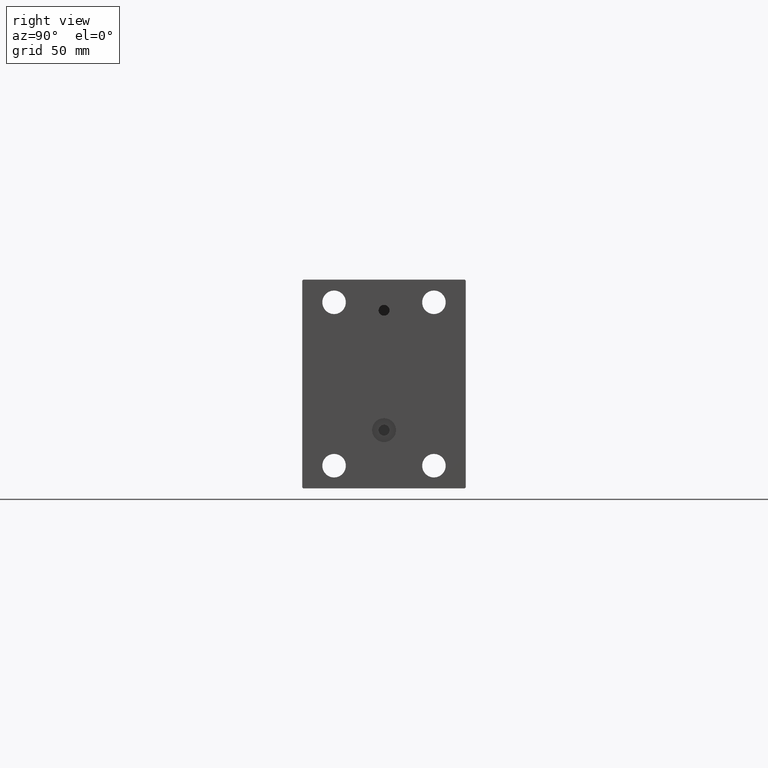
[diagram: clean part render]
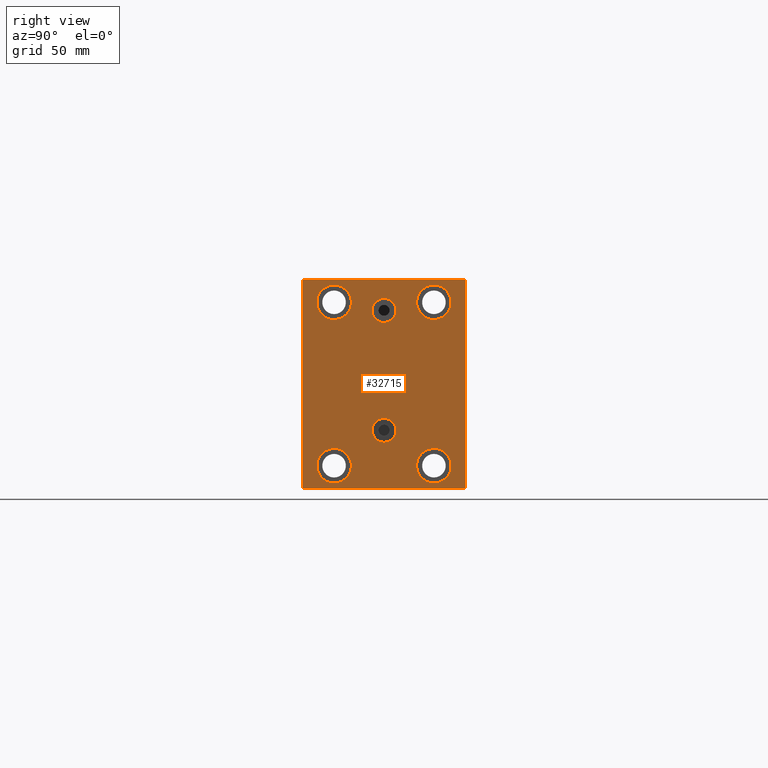
[diagram: same view with one face highlighted and labeled with its STEP entity id]
A machine part, right view. The second image highlights one B-rep face of the part: STEP entity #32715.
In plain terms, the highlighted planar face has unit normal (1, 0, 0).
Its self-contained STEP definition (entity closure, byte-faithful):
#542 = CIRCLE ( 'NONE', #17901, 9.500000000000001776 ) ;
#580 = DIRECTION ( 'NONE',  ( 0.000000000000000000, 0.000000000000000000, 1.000000000000000000 ) ) ;
#746 = LINE ( 'NONE', #44636, #17536 ) ;
#1048 = CIRCLE ( 'NONE', #27455, 6.580000000000002736 ) ;
#1370 = CARTESIAN_POINT ( 'NONE',  ( 278.0000000000000000, 45.00000000000000000, 57.50000000000000711 ) ) ;
#1559 = EDGE_LOOP ( 'NONE', ( #8905, #34251 ) ) ;
#1740 = EDGE_CURVE ( 'NONE', #34010, #37611, #39596, .T. ) ;
#1763 = CARTESIAN_POINT ( 'NONE',  ( 278.0000000000000000, -27.50000000000000000, -35.49999999999998579 ) ) ;
#2450 = ORIENTED_EDGE ( 'NONE', *, *, #26163, .T. ) ;
#2710 = CARTESIAN_POINT ( 'NONE',  ( 278.0000000000000000, 3.928666931664708475E-15, -18.91999999999999105 ) ) ;
#2758 = VERTEX_POINT ( 'NONE', #15259 ) ;
#3022 = ORIENTED_EDGE ( 'NONE', *, *, #37446, .F. ) ;
#3127 = AXIS2_PLACEMENT_3D ( 'NONE', #45572, #16820, #38724 ) ;
#3418 = VERTEX_POINT ( 'NONE', #11371 ) ;
#3640 = ORIENTED_EDGE ( 'NONE', *, *, #35917, .T. ) ;
#4467 = DIRECTION ( 'NONE',  ( -1.000000000000000000, -0.000000000000000000, -0.000000000000000000 ) ) ;
#4516 = LINE ( 'NONE', #33326, #22426 ) ;
#4670 = DIRECTION ( 'NONE',  ( 0.000000000000000000, 0.000000000000000000, 1.000000000000000000 ) ) ;
#4708 = DIRECTION ( 'NONE',  ( 0.000000000000000000, 0.000000000000000000, 1.000000000000000000 ) ) ;
#5155 = CIRCLE ( 'NONE', #23265, 6.580000000000002736 ) ;
#5231 = DIRECTION ( 'NONE',  ( -1.000000000000000000, -0.000000000000000000, -0.000000000000000000 ) ) ;
#5397 = CARTESIAN_POINT ( 'NONE',  ( 278.0000000000000000, -50.99999999999877076, -51.00000000000159162 ) ) ;
#5438 = VERTEX_POINT ( 'NONE', #44143 ) ;
#5465 = DIRECTION ( 'NONE',  ( 0.000000000000000000, 0.000000000000000000, 1.000000000000000000 ) ) ;
#5944 = VERTEX_POINT ( 'NONE', #34551 ) ;
#6117 = CARTESIAN_POINT ( 'NONE',  ( 278.0000000000000000, 45.00000000000001421, -57.50000000000000711 ) ) ;
#6212 = EDGE_CURVE ( 'NONE', #33758, #23087, #746, .T. ) ;
#6391 = CARTESIAN_POINT ( 'NONE',  ( 278.0000000000000000, 27.50000000000001066, 35.50000000000000711 ) ) ;
#6501 = LINE ( 'NONE', #20899, #8083 ) ;
#6544 = CARTESIAN_POINT ( 'NONE',  ( 278.0000000000000000, 27.49999999999998934, -44.99999999999998579 ) ) ;
#6600 = EDGE_CURVE ( 'NONE', #39061, #25896, #18318, .T. ) ;
#6933 = DIRECTION ( 'NONE',  ( 0.000000000000000000, 0.000000000000000000, -1.000000000000000000 ) ) ;
#7277 = EDGE_CURVE ( 'NONE', #15732, #33406, #8521, .T. ) ;
#7315 = DIRECTION ( 'NONE',  ( -1.000000000000000000, -0.000000000000000000, -0.000000000000000000 ) ) ;
#8083 = VECTOR ( 'NONE', #31079, 1000.000000000000000 ) ;
#8387 = DIRECTION ( 'NONE',  ( 0.000000000000000000, 0.000000000000000000, 1.000000000000000000 ) ) ;
#8521 = CIRCLE ( 'NONE', #45459, 9.500000000000001776 ) ;
#8905 = ORIENTED_EDGE ( 'NONE', *, *, #28478, .F. ) ;
#9211 = CIRCLE ( 'NONE', #35583, 9.500000000000001776 ) ;
#9622 = CARTESIAN_POINT ( 'NONE',  ( 278.0000000000000000, 0.000000000000000000, 0.000000000000000000 ) ) ;
#9680 = LINE ( 'NONE', #28313, #39824 ) ;
#10083 = PLANE ( 'NONE',  #15969 ) ;
#10763 = AXIS2_PLACEMENT_3D ( 'NONE', #37027, #4467, #4708 ) ;
#10981 = CARTESIAN_POINT ( 'NONE',  ( 278.0000000000000000, 3.122849337825749828E-15, -25.49999999999999645 ) ) ;
#11371 = CARTESIAN_POINT ( 'NONE',  ( 278.0000000000000000, -5.306417150674643778E-15, 33.92000000000000881 ) ) ;
#11404 = VECTOR ( 'NONE', #6933, 1000.000000000000000 ) ;
#11560 = EDGE_LOOP ( 'NONE', ( #3022, #43820 ) ) ;
#12663 = EDGE_CURVE ( 'NONE', #15606, #19687, #43479, .T. ) ;
#13333 = CARTESIAN_POINT ( 'NONE',  ( 278.0000000000000000, 27.49999999999998934, -54.49999999999998579 ) ) ;
#13391 = EDGE_CURVE ( 'NONE', #25896, #39061, #32940, .T. ) ;
#13629 = FACE_BOUND ( 'NONE', #34813, .T. ) ;
#13854 = CIRCLE ( 'NONE', #22906, 6.580000000000002736 ) ;
#13863 = DIRECTION ( 'NONE',  ( 0.000000000000000000, 0.000000000000000000, -1.000000000000000000 ) ) ;
#13905 = EDGE_CURVE ( 'NONE', #33406, #15732, #542, .T. ) ;
#14065 = DIRECTION ( 'NONE',  ( 0.000000000000000000, 0.000000000000000000, -1.000000000000000000 ) ) ;
#14753 = CARTESIAN_POINT ( 'NONE',  ( 278.0000000000000000, -27.50000000000000000, -54.49999999999998579 ) ) ;
#15259 = CARTESIAN_POINT ( 'NONE',  ( 278.0000000000000000, -4.500599556835684736E-15, 47.08000000000001251 ) ) ;
#15606 = VERTEX_POINT ( 'NONE', #1763 ) ;
#15732 = VERTEX_POINT ( 'NONE', #43697 ) ;
#15969 = AXIS2_PLACEMENT_3D ( 'NONE', #9622, #46156, #13863 ) ;
#15998 = DIRECTION ( 'NONE',  ( -1.000000000000000000, -0.000000000000000000, -0.000000000000000000 ) ) ;
#16058 = EDGE_CURVE ( 'NONE', #2758, #3418, #5155, .T. ) ;
#16216 = VERTEX_POINT ( 'NONE', #45167 ) ;
#16540 = ORIENTED_EDGE ( 'NONE', *, *, #28771, .T. ) ;
#16622 = CARTESIAN_POINT ( 'NONE',  ( 278.0000000000000000, -27.49999999999998934, 45.00000000000000711 ) ) ;
#16790 = CARTESIAN_POINT ( 'NONE',  ( 278.0000000000000000, 45.00000000000001421, -56.99999999999997868 ) ) ;
#16820 = DIRECTION ( 'NONE',  ( 1.000000000000000000, 0.000000000000000000, 0.000000000000000000 ) ) ;
#17135 = AXIS2_PLACEMENT_3D ( 'NONE', #24340, #7315, #32332 ) ;
#17184 = DIRECTION ( 'NONE',  ( 0.000000000000000000, 0.000000000000000000, 1.000000000000000000 ) ) ;
#17319 = LINE ( 'NONE', #17778, #11404 ) ;
#17339 = EDGE_CURVE ( 'NONE', #37611, #16216, #9680, .T. ) ;
#17536 = VECTOR ( 'NONE', #40616, 1000.000000000000000 ) ;
#17778 = CARTESIAN_POINT ( 'NONE',  ( 278.0000000000000000, -45.00000000000000000, 57.49999999999999289 ) ) ;
#17901 = AXIS2_PLACEMENT_3D ( 'NONE', #27095, #15998, #38365 ) ;
#18011 = EDGE_CURVE ( 'NONE', #44744, #34010, #4516, .T. ) ;
#18201 = CIRCLE ( 'NONE', #3127, 6.580000000000002736 ) ;
#18304 = VECTOR ( 'NONE', #35119, 1000.000000000000000 ) ;
#18318 = CIRCLE ( 'NONE', #10763, 9.500000000000001776 ) ;
#18838 = DIRECTION ( 'NONE',  ( -0.000000000000000000, 0.7071067811865671127, -0.7071067811865279218 ) ) ;
#19202 = ORIENTED_EDGE ( 'NONE', *, *, #6600, .T. ) ;
#19687 = VERTEX_POINT ( 'NONE', #14753 ) ;
#19742 = VECTOR ( 'NONE', #18838, 1000.000000000000000 ) ;
#19769 = CARTESIAN_POINT ( 'NONE',  ( 278.0000000000000000, 45.00000000000000000, 57.00000000000000711 ) ) ;
#20095 = CARTESIAN_POINT ( 'NONE',  ( 278.0000000000000000, 27.49999999999998934, -35.49999999999998579 ) ) ;
#20361 = VERTEX_POINT ( 'NONE', #13333 ) ;
#20899 = CARTESIAN_POINT ( 'NONE',  ( 278.0000000000000000, -45.00000000000000000, -57.50000000000000711 ) ) ;
#22261 = EDGE_LOOP ( 'NONE', ( #44395, #39493 ) ) ;
#22426 = VECTOR ( 'NONE', #34718, 1000.000000000000000 ) ;
#22701 = CARTESIAN_POINT ( 'NONE',  ( 278.0000000000000000, 27.49999999999998934, -44.99999999999998579 ) ) ;
#22906 = AXIS2_PLACEMENT_3D ( 'NONE', #10981, #32704, #580 ) ;
#23087 = VERTEX_POINT ( 'NONE', #16790 ) ;
#23265 = AXIS2_PLACEMENT_3D ( 'NONE', #39289, #31325, #14065 ) ;
#23901 = VERTEX_POINT ( 'NONE', #38926 ) ;
#24340 = CARTESIAN_POINT ( 'NONE',  ( 278.0000000000000000, -27.50000000000000000, -44.99999999999998579 ) ) ;
#24494 = FACE_OUTER_BOUND ( 'NONE', #44972, .T. ) ;
#25171 = VERTEX_POINT ( 'NONE', #2710 ) ;
#25690 = ORIENTED_EDGE ( 'NONE', *, *, #6212, .T. ) ;
#25896 = VERTEX_POINT ( 'NONE', #41817 ) ;
#26161 = CARTESIAN_POINT ( 'NONE',  ( 278.0000000000000000, -27.50000000000000000, -44.99999999999998579 ) ) ;
#26163 = EDGE_CURVE ( 'NONE', #33720, #20361, #41451, .T. ) ;
#26233 = ORIENTED_EDGE ( 'NONE', *, *, #12663, .T. ) ;
#26335 = CARTESIAN_POINT ( 'NONE',  ( 278.0000000000000000, 3.122849337825749828E-15, -25.49999999999999645 ) ) ;
#27095 = CARTESIAN_POINT ( 'NONE',  ( 278.0000000000000000, 27.50000000000001066, 45.00000000000000711 ) ) ;
#27122 = ORIENTED_EDGE ( 'NONE', *, *, #28132, .T. ) ;
#27162 = AXIS2_PLACEMENT_3D ( 'NONE', #22701, #5231, #5465 ) ;
#27352 = DIRECTION ( 'NONE',  ( -1.000000000000000000, -0.000000000000000000, -0.000000000000000000 ) ) ;
#27455 = AXIS2_PLACEMENT_3D ( 'NONE', #26335, #40696, #8387 ) ;
#27872 = ORIENTED_EDGE ( 'NONE', *, *, #18011, .T. ) ;
#28038 = EDGE_CURVE ( 'NONE', #19687, #15606, #30996, .T. ) ;
#28132 = EDGE_CURVE ( 'NONE', #16216, #23901, #17319, .T. ) ;
#28277 = DIRECTION ( 'NONE',  ( -1.000000000000000000, -0.000000000000000000, -0.000000000000000000 ) ) ;
#28313 = CARTESIAN_POINT ( 'NONE',  ( 278.0000000000000000, -51.00000000000123634, 50.99999999999841549 ) ) ;
#28478 = EDGE_CURVE ( 'NONE', #3418, #2758, #18201, .T. ) ;
#28771 = EDGE_CURVE ( 'NONE', #23901, #5944, #37704, .T. ) ;
#29229 = ORIENTED_EDGE ( 'NONE', *, *, #43488, .T. ) ;
#29850 = EDGE_CURVE ( 'NONE', #20361, #33720, #9211, .T. ) ;
#30129 = ORIENTED_EDGE ( 'NONE', *, *, #1740, .T. ) ;
#30411 = DIRECTION ( 'NONE',  ( -1.000000000000000000, -0.000000000000000000, -0.000000000000000000 ) ) ;
#30791 = DIRECTION ( 'NONE',  ( 0.000000000000000000, 0.000000000000000000, 1.000000000000000000 ) ) ;
#30996 = CIRCLE ( 'NONE', #36989, 9.500000000000001776 ) ;
#31079 = DIRECTION ( 'NONE',  ( 0.000000000000000000, 1.000000000000000000, 0.000000000000000000 ) ) ;
#31219 = CARTESIAN_POINT ( 'NONE',  ( 278.0000000000000000, -27.49999999999998934, 35.50000000000000711 ) ) ;
#31325 = DIRECTION ( 'NONE',  ( 1.000000000000000000, 0.000000000000000000, 0.000000000000000000 ) ) ;
#31461 = AXIS2_PLACEMENT_3D ( 'NONE', #16622, #44921, #30791 ) ;
#31575 = FACE_BOUND ( 'NONE', #11560, .T. ) ;
#32052 = CARTESIAN_POINT ( 'NONE',  ( 278.0000000000000000, 27.50000000000001066, 45.00000000000000711 ) ) ;
#32332 = DIRECTION ( 'NONE',  ( 0.000000000000000000, 0.000000000000000000, 1.000000000000000000 ) ) ;
#32704 = DIRECTION ( 'NONE',  ( 1.000000000000000000, 0.000000000000000000, -0.000000000000000000 ) ) ;
#32715 = ADVANCED_FACE ( 'NONE', ( #39084, #31575, #13629, #42383, #38850, #41932, #24494 ), #10083, .T. ) ;
#32940 = CIRCLE ( 'NONE', #31461, 9.500000000000001776 ) ;
#33160 = ORIENTED_EDGE ( 'NONE', *, *, #17339, .T. ) ;
#33201 = EDGE_LOOP ( 'NONE', ( #36054, #26233 ) ) ;
#33326 = CARTESIAN_POINT ( 'NONE',  ( 278.0000000000000000, 50.99999999999877076, 51.00000000000159162 ) ) ;
#33406 = VERTEX_POINT ( 'NONE', #6391 ) ;
#33720 = VERTEX_POINT ( 'NONE', #20095 ) ;
#33758 = VERTEX_POINT ( 'NONE', #40840 ) ;
#34010 = VERTEX_POINT ( 'NONE', #42107 ) ;
#34251 = ORIENTED_EDGE ( 'NONE', *, *, #16058, .F. ) ;
#34551 = CARTESIAN_POINT ( 'NONE',  ( 278.0000000000000000, -44.50000000000000000, -57.50000000000000711 ) ) ;
#34718 = DIRECTION ( 'NONE',  ( -0.000000000000000000, -0.7071067811865671127, 0.7071067811865279218 ) ) ;
#34813 = EDGE_LOOP ( 'NONE', ( #42571, #2450 ) ) ;
#34879 = DIRECTION ( 'NONE',  ( 0.000000000000000000, 0.000000000000000000, 1.000000000000000000 ) ) ;
#35119 = DIRECTION ( 'NONE',  ( 0.000000000000000000, -1.206764157201257045E-16, 1.000000000000000000 ) ) ;
#35583 = AXIS2_PLACEMENT_3D ( 'NONE', #6544, #27352, #34879 ) ;
#35585 = LINE ( 'NONE', #6117, #18304 ) ;
#35917 = EDGE_CURVE ( 'NONE', #23087, #44744, #35585, .T. ) ;
#36054 = ORIENTED_EDGE ( 'NONE', *, *, #28038, .T. ) ;
#36967 = VECTOR ( 'NONE', #37931, 1000.000000000000000 ) ;
#36989 = AXIS2_PLACEMENT_3D ( 'NONE', #26161, #30411, #4670 ) ;
#37027 = CARTESIAN_POINT ( 'NONE',  ( 278.0000000000000000, -27.49999999999998934, 45.00000000000000711 ) ) ;
#37446 = EDGE_CURVE ( 'NONE', #5438, #25171, #13854, .T. ) ;
#37611 = VERTEX_POINT ( 'NONE', #41162 ) ;
#37704 = LINE ( 'NONE', #5397, #19742 ) ;
#37931 = DIRECTION ( 'NONE',  ( 0.000000000000000000, -1.000000000000000000, -1.541976423090495387E-16 ) ) ;
#38365 = DIRECTION ( 'NONE',  ( 0.000000000000000000, 0.000000000000000000, 1.000000000000000000 ) ) ;
#38724 = DIRECTION ( 'NONE',  ( 0.000000000000000000, 0.000000000000000000, -1.000000000000000000 ) ) ;
#38850 = FACE_BOUND ( 'NONE', #22261, .T. ) ;
#38926 = CARTESIAN_POINT ( 'NONE',  ( 278.0000000000000000, -45.00000000000000000, -57.00000000000003553 ) ) ;
#39061 = VERTEX_POINT ( 'NONE', #31219 ) ;
#39084 = FACE_BOUND ( 'NONE', #1559, .T. ) ;
#39289 = CARTESIAN_POINT ( 'NONE',  ( 278.0000000000000000, -5.306417150674643778E-15, 40.50000000000000711 ) ) ;
#39493 = ORIENTED_EDGE ( 'NONE', *, *, #7277, .T. ) ;
#39596 = LINE ( 'NONE', #1370, #36967 ) ;
#39639 = EDGE_CURVE ( 'NONE', #25171, #5438, #1048, .T. ) ;
#39821 = ORIENTED_EDGE ( 'NONE', *, *, #13391, .T. ) ;
#39824 = VECTOR ( 'NONE', #46439, 1000.000000000000000 ) ;
#40308 = EDGE_LOOP ( 'NONE', ( #19202, #39821 ) ) ;
#40616 = DIRECTION ( 'NONE',  ( -0.000000000000000000, 0.7071067811865279218, 0.7071067811865672237 ) ) ;
#40696 = DIRECTION ( 'NONE',  ( 1.000000000000000000, 0.000000000000000000, -0.000000000000000000 ) ) ;
#40840 = CARTESIAN_POINT ( 'NONE',  ( 278.0000000000000000, 44.49999999999998579, -57.50000000000000711 ) ) ;
#41162 = CARTESIAN_POINT ( 'NONE',  ( 278.0000000000000000, -44.50000000000000000, 57.49999999999999289 ) ) ;
#41451 = CIRCLE ( 'NONE', #27162, 9.500000000000001776 ) ;
#41817 = CARTESIAN_POINT ( 'NONE',  ( 278.0000000000000000, -27.49999999999998934, 54.50000000000000711 ) ) ;
#41932 = FACE_BOUND ( 'NONE', #33201, .T. ) ;
#42107 = CARTESIAN_POINT ( 'NONE',  ( 278.0000000000000000, 44.50000000000000000, 57.50000000000000711 ) ) ;
#42383 = FACE_BOUND ( 'NONE', #40308, .T. ) ;
#42571 = ORIENTED_EDGE ( 'NONE', *, *, #29850, .T. ) ;
#43479 = CIRCLE ( 'NONE', #17135, 9.500000000000001776 ) ;
#43488 = EDGE_CURVE ( 'NONE', #5944, #33758, #6501, .T. ) ;
#43697 = CARTESIAN_POINT ( 'NONE',  ( 278.0000000000000000, 27.50000000000001066, 54.50000000000000711 ) ) ;
#43820 = ORIENTED_EDGE ( 'NONE', *, *, #39639, .F. ) ;
#44143 = CARTESIAN_POINT ( 'NONE',  ( 278.0000000000000000, 3.122849337825749828E-15, -32.07999999999999829 ) ) ;
#44395 = ORIENTED_EDGE ( 'NONE', *, *, #13905, .T. ) ;
#44636 = CARTESIAN_POINT ( 'NONE',  ( 278.0000000000000000, 51.00000000000125056, -50.99999999999841549 ) ) ;
#44744 = VERTEX_POINT ( 'NONE', #19769 ) ;
#44921 = DIRECTION ( 'NONE',  ( -1.000000000000000000, -0.000000000000000000, -0.000000000000000000 ) ) ;
#44972 = EDGE_LOOP ( 'NONE', ( #30129, #33160, #27122, #16540, #29229, #25690, #3640, #27872 ) ) ;
#45167 = CARTESIAN_POINT ( 'NONE',  ( 278.0000000000000000, -45.00000000000000000, 56.99999999999999289 ) ) ;
#45459 = AXIS2_PLACEMENT_3D ( 'NONE', #32052, #28277, #17184 ) ;
#45572 = CARTESIAN_POINT ( 'NONE',  ( 278.0000000000000000, -5.306417150674643778E-15, 40.50000000000000711 ) ) ;
#46156 = DIRECTION ( 'NONE',  ( 1.000000000000000000, 0.000000000000000000, 0.000000000000000000 ) ) ;
#46439 = DIRECTION ( 'NONE',  ( 0.000000000000000000, -0.7071067811865279218, -0.7071067811865671127 ) ) ;